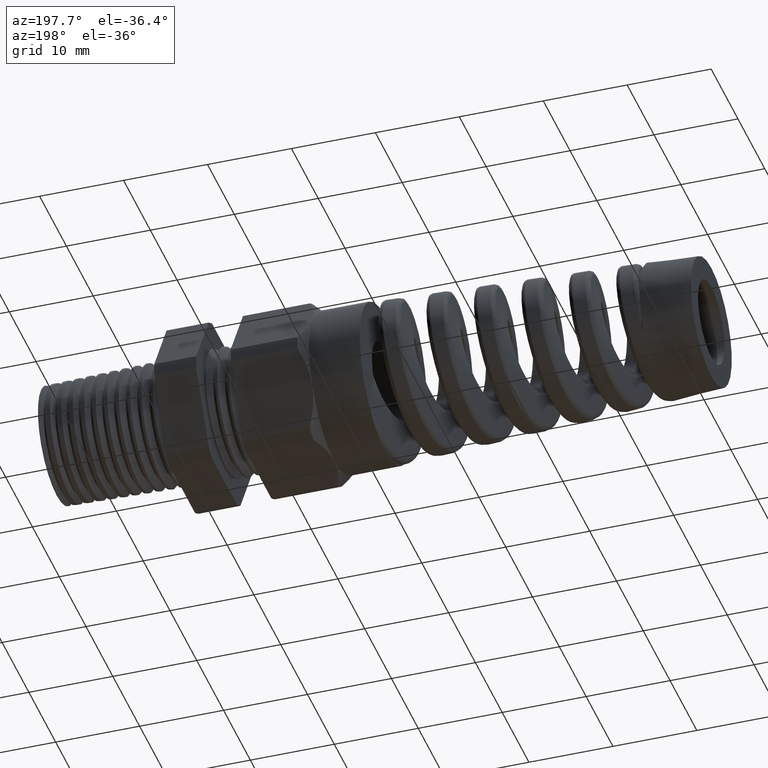
[diagram: clean part render]
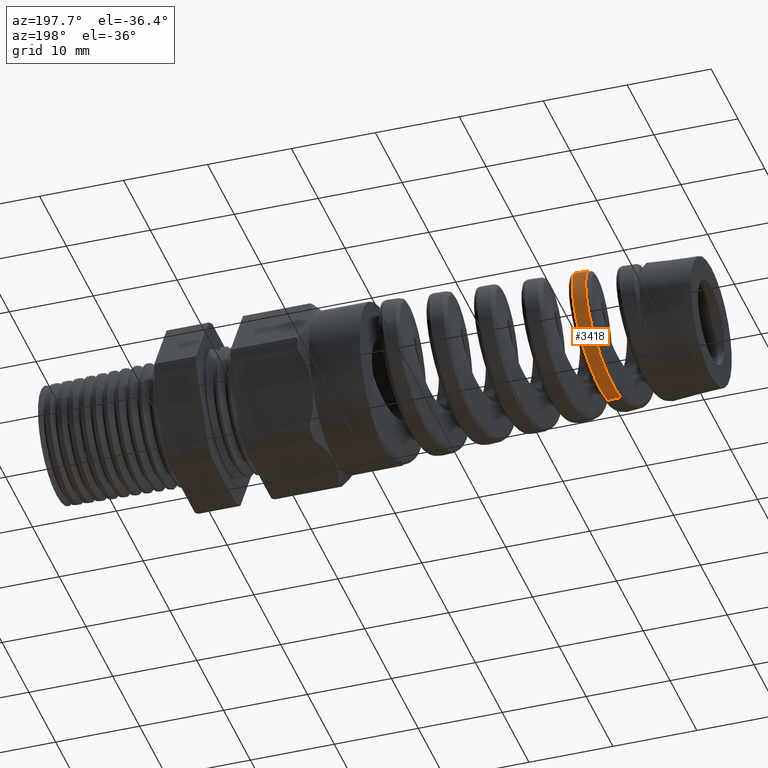
[diagram: same view with one face highlighted and labeled with its STEP entity id]
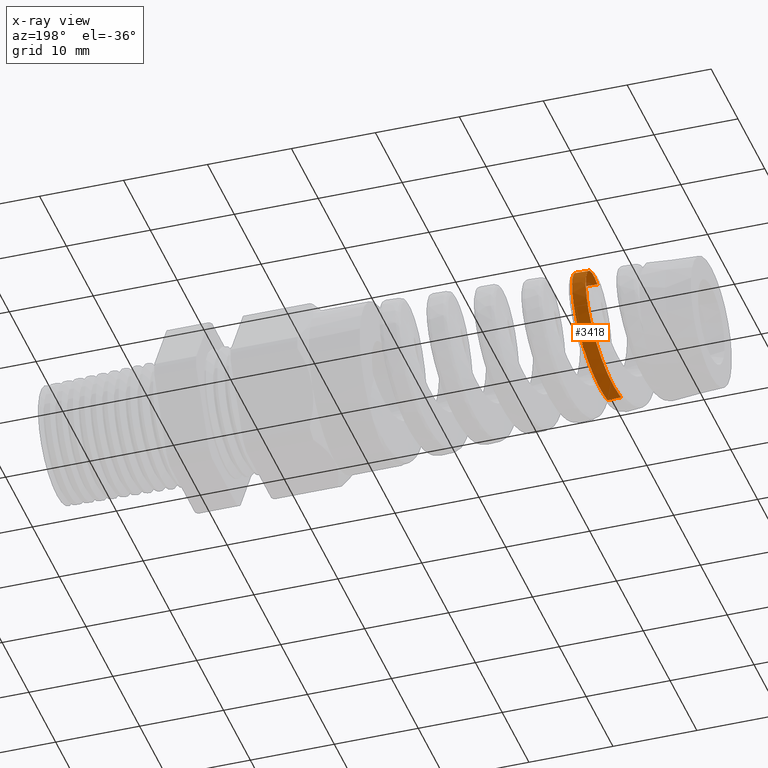
[diagram: x-ray of the same camera — body ghosted, the highlighted face saturated]
A machine part, auxiliary view. The second image highlights one B-rep face of the part: STEP entity #3418.
The next image is the same camera in x-ray: the body ghosted, the highlighted face saturated — about 1% of this face is hidden behind the body in this view.
In plain terms, the highlighted conical surface has half-angle 2.5 deg.
Its self-contained STEP definition (entity closure, byte-faithful):
#1494 = CARTESIAN_POINT ( 'NONE',  ( -2.209177487000779200, 0.1456362050329624300, 0.2969853871106482000 ) ) ;
#1495 = CARTESIAN_POINT ( 'NONE',  ( -2.205738799700770700, 0.1157113965931070700, 0.3094669749732346100 ) ) ;
#1496 = CARTESIAN_POINT ( 'NONE',  ( -2.204589334011666200, 0.1054975364402266800, 0.3131467736707749200 ) ) ;
#1497 = CARTESIAN_POINT ( 'NONE',  ( -2.202315930669323400, 0.08495742881057295700, 0.3194345641802153700 ) ) ;
#1498 = CARTESIAN_POINT ( 'NONE',  ( -2.200055135154602900, 0.06420458544207984000, 0.3246942573354517100 ) ) ;
#1499 = CARTESIAN_POINT ( 'NONE',  ( -2.197796051478310400, 0.04303442200611437600, 0.3279250048190918700 ) ) ;
#1500 = CARTESIAN_POINT ( 'NONE',  ( -2.195526008496445000, 0.02165381405193102900, 0.3301263665650415200 ) ) ;
#1501 = CARTESIAN_POINT ( 'NONE',  ( -2.194379242988937900, 0.01079892275251614000, 0.3307112457842698600 ) ) ;
#1502 = CARTESIAN_POINT ( 'NONE',  ( -2.193238227115036600, 3.170206203792401100E-013, 0.3307610636132082300 ) ) ;
#1504 = B_SPLINE_CURVE_WITH_KNOTS ( 'NONE', 3,
 ( #1502, #1501, #1500, #1499, #1498, #1497, #1496, #1495, #1494, #10245, #10241, #10224, #10721, #10720, #10719, #10718, #10717, #10716, #10715, #1557, #1556, #1555, #1554, #1553, #1552, #1551, #1550, #1549, #1548, #1547, #1546, #1545, #1544, #1543, #1542, #1541, #1540, #1539, #1538, #1537, #1536, #1535, #1534, #1533, #1532, #1531, #1530, #1529, #1528 ),
 .UNSPECIFIED., .F., .F.,
 ( 4, 2, 1, 2, 2, 2, 2, 2, 2, 2, 2, 2, 2, 2, 2, 2, 2, 2, 2, 2, 2, 2, 2, 2, 4 ),
 ( 0.2398424016245850100, 0.2406680876524174800, 0.2414937736802499600, 0.2423194597080824400, 0.2431451457359148900, 0.2447965177915798500, 0.2456222038194123300, 0.2464478898472448100, 0.2480992619029097300, 0.2489249479307422100, 0.2497506339585746900, 0.2514020060142396200, 0.2522276920420721300, 0.2530533780699045800, 0.2538790640977370800, 0.2547047501255695300, 0.2563561221812344900, 0.2580074942368994500, 0.2596588662925644100, 0.2604845523203968600, 0.2613102383482293600, 0.2629616104038942600, 0.2646129824595592200, 0.2654386684873917300, 0.2662643545152241800 ),
 .UNSPECIFIED. ) ;
#1511 = DIRECTION ( 'NONE',  ( 0.9990482215818576900, 0.0000000000000000000, -0.04361938736533628500 ) ) ;
#1512 = VECTOR ( 'NONE', #1511, 39.37007874015748100 ) ;
#1513 = CARTESIAN_POINT ( 'NONE',  ( -1.179999999999999900, 0.0000000000000000000, -0.3750000000000001100 ) ) ;
#1514 = LINE ( 'NONE', #1513, #1512 ) ;
#1528 = CARTESIAN_POINT ( 'NONE',  ( -2.303072361105305900, 5.141726150115494600E-013, -0.3259656017596531700 ) ) ;
#1529 = CARTESIAN_POINT ( 'NONE',  ( -2.301920201144354500, 0.01075418184079731000, -0.3260159061499128300 ) ) ;
#1530 = CARTESIAN_POINT ( 'NONE',  ( -2.300755430577350300, 0.02162714311558475200, -0.3255274832616165100 ) ) ;
#1531 = CARTESIAN_POINT ( 'NONE',  ( -2.298442958795185600, 0.04310314199974558900, -0.3234870128552830800 ) ) ;
#1532 = CARTESIAN_POINT ( 'NONE',  ( -2.297293729154626300, 0.05372065727903302400, -0.3219420385739279500 ) ) ;
#1533 = CARTESIAN_POINT ( 'NONE',  ( -2.293850496285076500, 0.08521890723315839200, -0.3157717939090702300 ) ) ;
#1534 = CARTESIAN_POINT ( 'NONE',  ( -2.291560605814346300, 0.1057487751343264700, -0.3096262052033625400 ) ) ;
#1535 = CARTESIAN_POINT ( 'NONE',  ( -2.286920470429096900, 0.1458272543633552200, -0.2931175932373655300 ) ) ;
#1536 = CARTESIAN_POINT ( 'NONE',  ( -2.284636197019675600, 0.1647800606196331300, -0.2829913660267374100 ) ) ;
#1537 = CARTESIAN_POINT ( 'NONE',  ( -2.281208427051308900, 0.1914786638383038900, -0.2651926435877093900 ) ) ;
#1538 = CARTESIAN_POINT ( 'NONE',  ( -2.280064622056161600, 0.2000971442091688800, -0.2588176991051756000 ) ) ;
#1539 = CARTESIAN_POINT ( 'NONE',  ( -2.277762599407943800, 0.2167594389224668500, -0.2451663736611863500 ) ) ;
#1540 = CARTESIAN_POINT ( 'NONE',  ( -2.276599554924935800, 0.2248320977805508500, -0.2378548441323176400 ) ) ;
#1541 = CARTESIAN_POINT ( 'NONE',  ( -2.273144141138296000, 0.2476743732625567300, -0.2150079963283508000 ) ) ;
#1542 = CARTESIAN_POINT ( 'NONE',  ( -2.270864710765881300, 0.2612358542246771000, -0.1984645542235977400 ) ) ;
#1543 = CARTESIAN_POINT ( 'NONE',  ( -2.266282573180328900, 0.2850642720406871800, -0.1627935500892188900 ) ) ;
#1544 = CARTESIAN_POINT ( 'NONE',  ( -2.263963809780321400, 0.2953590947746588300, -0.1434990103225291200 ) ) ;
#1545 = CARTESIAN_POINT ( 'NONE',  ( -2.259397979151342600, 0.3117183555947539700, -0.1038812284510735500 ) ) ;
#1546 = CARTESIAN_POINT ( 'NONE',  ( -2.257129578572953500, 0.3179226141503118700, -0.08340124169393846300 ) ) ;
#1547 = CARTESIAN_POINT ( 'NONE',  ( -2.253679547608537200, 0.3242088439066907500, -0.05166309062753419300 ) ) ;
#1548 = CARTESIAN_POINT ( 'NONE',  ( -2.252519727480928800, 0.3257925099286366200, -0.04089380219012450600 ) ) ;
#1549 = CARTESIAN_POINT ( 'NONE',  ( -2.250224769990559500, 0.3278708275233405100, -0.01948227174093790400 ) ) ;
#1550 = CARTESIAN_POINT ( 'NONE',  ( -2.249083333724185300, 0.3283794976952908500, -0.008782339484950753300 ) ) ;
#1551 = CARTESIAN_POINT ( 'NONE',  ( -2.246803970284199100, 0.3283545224690063700, 0.01260516921483891700 ) ) ;
#1552 = CARTESIAN_POINT ( 'NONE',  ( -2.245666558320045700, 0.3278208302279839700, 0.02329280022594375200 ) ) ;
#1553 = CARTESIAN_POINT ( 'NONE',  ( -2.243383867040451100, 0.3257000520063279000, 0.04465435357600222600 ) ) ;
#1554 = CARTESIAN_POINT ( 'NONE',  ( -2.242233951538998000, 0.3241039657371036500, 0.05537154305154983600 ) ) ;
#1555 = CARTESIAN_POINT ( 'NONE',  ( -2.238785955352539800, 0.3177354940091178800, 0.08719912084816966400 ) ) ;
#1556 = CARTESIAN_POINT ( 'NONE',  ( -2.236522261644973600, 0.3114779880375360700, 0.1076844159187185800 ) ) ;
#1557 = CARTESIAN_POINT ( 'NONE',  ( -2.233108970753142900, 0.2991756317165768500, 0.1373419936421445800 ) ) ;
#3359 = VERTEX_POINT ( 'NONE', #5852 ) ;
#3380 = VERTEX_POINT ( 'NONE', #5850 ) ;
#3416 = EDGE_LOOP ( 'NONE', ( #3422, #6407, #6146, #10093 ) ) ;
#3418 = ADVANCED_FACE ( 'NONE', ( #5923 ), #5918, .T. ) ;
#3422 = ORIENTED_EDGE ( 'NONE', *, *, #3423, .T. ) ;
#3423 = EDGE_CURVE ( 'NONE', #3359, #3380, #5907, .T. ) ;
#5850 = CARTESIAN_POINT ( 'NONE',  ( -2.255803844781471200, 3.621756841502075700E-016, 0.3280293897522382200 ) ) ;
#5852 = CARTESIAN_POINT ( 'NONE',  ( -2.365972676852627000, -5.751916567314480400E-015, -0.3232193146648820200 ) ) ;
#5893 = CARTESIAN_POINT ( 'NONE',  ( -2.335952384154522200, 0.2452056214577850700, -0.2128558421280715700 ) ) ;
#5894 = CARTESIAN_POINT ( 'NONE',  ( -2.337116253787379500, 0.2379628806085676000, -0.2208507404898432900 ) ) ;
#5895 = CARTESIAN_POINT ( 'NONE',  ( -2.340588829876800100, 0.2152417601658628000, -0.2435525900313549300 ) ) ;
#5896 = CARTESIAN_POINT ( 'NONE',  ( -2.342877696134207300, 0.1988138107476767900, -0.2569983534002076600 ) ) ;
#5897 = CARTESIAN_POINT ( 'NONE',  ( -2.347481279838886900, 0.1634595574301346000, -0.2805811131025434100 ) ) ;
#5898 = CARTESIAN_POINT ( 'NONE',  ( -2.349815459327329000, 0.1443190696970299600, -0.2907786594227971800 ) ) ;
#5899 = CARTESIAN_POINT ( 'NONE',  ( -2.354419099894529600, 0.1049544427866682500, -0.3069765637701985000 ) ) ;
#5900 = CARTESIAN_POINT ( 'NONE',  ( -2.356703206343147000, 0.08463738793928682300, -0.3130892954446149500 ) ) ;
#5901 = CARTESIAN_POINT ( 'NONE',  ( -2.360174635947206700, 0.05320706543500560600, -0.3192450671240927300 ) ) ;
#5902 = CARTESIAN_POINT ( 'NONE',  ( -2.361345075774900600, 0.04251657945143615100, -0.3207926893897890500 ) ) ;
#5903 = CARTESIAN_POINT ( 'NONE',  ( -2.363665833232092300, 0.02123473501328850000, -0.3227989515284803700 ) ) ;
#5904 = CARTESIAN_POINT ( 'NONE',  ( -2.364819975423546200, 0.01060945820310109700, -0.3232696426961677000 ) ) ;
#5905 = CARTESIAN_POINT ( 'NONE',  ( -2.365972676852627000, -5.751916567314480400E-015, -0.3232193146648820200 ) ) ;
#5907 = B_SPLINE_CURVE_WITH_KNOTS ( 'NONE', 3,
 ( #5905, #5904, #5903, #5902, #5901, #5900, #5899, #5898, #5897, #5896, #5895, #5894, #5893, #5970, #5969, #5968, #5967, #5965, #5964, #5963, #5962, #5961, #5960, #5958, #5957, #5956, #5955, #5954, #5953, #5951, #5950, #5949, #5948, #5947, #5946, #5945, #5944, #5943, #5942, #5941, #5940, #5939, #5938, #5937, #5936 ),
 .UNSPECIFIED., .F., .F.,
 ( 4, 2, 2, 2, 2, 2, 2, 1, 2, 2, 2, 2, 2, 2, 2, 2, 2, 2, 2, 2, 2, 2, 4 ),
 ( 0.04406479074309756900, 0.04488904279929904800, 0.04571329485550051900, 0.04736179896790346900, 0.04901030308030641900, 0.05065880719270936900, 0.05148305924891084100, 0.05230731130511232000, 0.05313156336131379100, 0.05395581541751526300, 0.05560431952991822000, 0.05642857158611969100, 0.05725282364232117000, 0.05890132775472412000, 0.05972557981092560500, 0.06054983186712707700, 0.06219833597953002700, 0.06384684009193297700, 0.06467109214813446200, 0.06549534420433593400, 0.06714384831673887700, 0.06879235242914183400, 0.07044085654154477700 ),
 .UNSPECIFIED. ) ;
#5914 = DIRECTION ( 'NONE',  ( 0.0000000000000000000, 0.0000000000000000000, -1.000000000000000000 ) ) ;
#5915 = DIRECTION ( 'NONE',  ( 1.000000000000000000, 0.0000000000000000000, 0.0000000000000000000 ) ) ;
#5916 = CARTESIAN_POINT ( 'NONE',  ( -1.179999999999999900, 0.0000000000000000000, 0.0000000000000000000 ) ) ;
#5917 = AXIS2_PLACEMENT_3D ( 'NONE', #5916, #5915, #5914 ) ;
#5918 = CONICAL_SURFACE ( 'NONE', #5917, 0.3750000000000001100, 0.04363323129985852100 ) ;
#5923 = FACE_OUTER_BOUND ( 'NONE', #3416, .T. ) ;
#5936 = CARTESIAN_POINT ( 'NONE',  ( -2.255803844781471200, 3.621756841502075700E-016, 0.3280293897522382200 ) ) ;
#5937 = CARTESIAN_POINT ( 'NONE',  ( -2.258089942787760800, 0.02135566786368742500, 0.3279295765577021600 ) ) ;
#5938 = CARTESIAN_POINT ( 'NONE',  ( -2.260352664922128600, 0.04246249618373695200, 0.3257647328470279500 ) ) ;
#5939 = CARTESIAN_POINT ( 'NONE',  ( -2.264903583427110500, 0.08417591520400206900, 0.3173482334676087100 ) ) ;
#5940 = CARTESIAN_POINT ( 'NONE',  ( -2.267210517927480400, 0.1049165753353977200, 0.3110003196632100700 ) ) ;
#5941 = CARTESIAN_POINT ( 'NONE',  ( -2.271758965751020700, 0.1441612046972909600, 0.2946458628857338000 ) ) ;
#5942 = CARTESIAN_POINT ( 'NONE',  ( -2.274021889950280000, 0.1628719835672588800, 0.2846266043771748000 ) ) ;
#5943 = CARTESIAN_POINT ( 'NONE',  ( -2.277465052419391300, 0.1895376978509060500, 0.2667837098032161400 ) ) ;
#5944 = CARTESIAN_POINT ( 'NONE',  ( -2.278623396453129500, 0.1982058510658698300, 0.2603438943160778000 ) ) ;
#5945 = CARTESIAN_POINT ( 'NONE',  ( -2.280915653185582300, 0.2146932926019506400, 0.2467910908577131700 ) ) ;
#5946 = CARTESIAN_POINT ( 'NONE',  ( -2.282055547586491900, 0.2225616941060445700, 0.2396485859442858700 ) ) ;
#5947 = CARTESIAN_POINT ( 'NONE',  ( -2.285469387238547000, 0.2450596571148692900, 0.2171429057429653800 ) ) ;
#5948 = CARTESIAN_POINT ( 'NONE',  ( -2.287748448169056200, 0.2586386312343897900, 0.2006423770359895300 ) ) ;
#5949 = CARTESIAN_POINT ( 'NONE',  ( -2.292354947980539400, 0.2825133895162589800, 0.1649428446600479400 ) ) ;
#5950 = CARTESIAN_POINT ( 'NONE',  ( -2.294625758150697700, 0.2925243415925072900, 0.1461994443306217600 ) ) ;
#5951 = CARTESIAN_POINT ( 'NONE',  ( -2.298051391165123500, 0.3047429482914530400, 0.1167944019164438400 ) ) ;
#5953 = CARTESIAN_POINT ( 'NONE',  ( -2.299196329758769000, 0.3083461906877795200, 0.1067761751352823600 ) ) ;
#5954 = CARTESIAN_POINT ( 'NONE',  ( -2.301502272706580100, 0.3145883430510200100, 0.08629622913911541600 ) ) ;
#5955 = CARTESIAN_POINT ( 'NONE',  ( -2.302663257466435200, 0.3172196135912345700, 0.07583290748691907900 ) ) ;
#5956 = CARTESIAN_POINT ( 'NONE',  ( -2.306106454691494000, 0.3234886540668491800, 0.04446456756481770300 ) ) ;
#5957 = CARTESIAN_POINT ( 'NONE',  ( -2.308375258999914200, 0.3255933447568809000, 0.02335451713907580100 ) ) ;
#5958 = CARTESIAN_POINT ( 'NONE',  ( -2.311811749990420500, 0.3256446941161434400, -0.008598744592162576100 ) ) ;
#5960 = CARTESIAN_POINT ( 'NONE',  ( -2.312968366461647800, 0.3251347704489528900, -0.01935039517648173800 ) ) ;
#5961 = CARTESIAN_POINT ( 'NONE',  ( -2.315277370688448400, 0.3230562585051619500, -0.04069501851350555000 ) ) ;
#5962 = CARTESIAN_POINT ( 'NONE',  ( -2.316424389057581700, 0.3214984670218312100, -0.05123833691944438400 ) ) ;
#5963 = CARTESIAN_POINT ( 'NONE',  ( -2.319860204853328800, 0.3153136028078230000, -0.08249043471175562800 ) ) ;
#5964 = CARTESIAN_POINT ( 'NONE',  ( -2.322144197817575400, 0.3091893482759762700, -0.1028248904680355700 ) ) ;
#5965 = CARTESIAN_POINT ( 'NONE',  ( -2.325616949948098100, 0.2969152961662653300, -0.1325482652580671200 ) ) ;
#5967 = CARTESIAN_POINT ( 'NONE',  ( -2.326777355370543100, 0.2923153018871479400, -0.1422854582223570300 ) ) ;
#5968 = CARTESIAN_POINT ( 'NONE',  ( -2.329075266513352700, 0.2822793723526624300, -0.1610793389671551500 ) ) ;
#5969 = CARTESIAN_POINT ( 'NONE',  ( -2.331362040943707000, 0.2713670908531303800, -0.1792950466650045600 ) ) ;
#5970 = CARTESIAN_POINT ( 'NONE',  ( -2.333650699847476000, 0.2587253216686462600, -0.1963666234377776400 ) ) ;
#6008 = VERTEX_POINT ( 'NONE', #8848 ) ;
#6146 = ORIENTED_EDGE ( 'NONE', *, *, #10713, .T. ) ;
#6407 = ORIENTED_EDGE ( 'NONE', *, *, #6456, .T. ) ;
#6456 = EDGE_CURVE ( 'NONE', #3380, #6008, #9910, .T. ) ;
#8221 = VERTEX_POINT ( 'NONE', #10116 ) ;
#8848 = CARTESIAN_POINT ( 'NONE',  ( -2.193238227115036600, 3.170206203792401100E-013, 0.3307610636132082300 ) ) ;
#9907 = DIRECTION ( 'NONE',  ( 0.9990482215818576900, 5.341834311772757900E-018, 0.04361938736533628500 ) ) ;
#9908 = VECTOR ( 'NONE', #9907, 39.37007874015748100 ) ;
#9909 = CARTESIAN_POINT ( 'NONE',  ( -1.179999999999999900, 4.592425496802576100E-017, 0.3750000000000001100 ) ) ;
#9910 = LINE ( 'NONE', #9909, #9908 ) ;
#10093 = ORIENTED_EDGE ( 'NONE', *, *, #10239, .F. ) ;
#10116 = CARTESIAN_POINT ( 'NONE',  ( -2.303072361105305900, 5.141726150115494600E-013, -0.3259656017596531700 ) ) ;
#10224 = CARTESIAN_POINT ( 'NONE',  ( -2.215979204727292400, 0.1998055819480005200, 0.2625672725331088000 ) ) ;
#10239 = EDGE_CURVE ( 'NONE', #3359, #8221, #1514, .T. ) ;
#10241 = CARTESIAN_POINT ( 'NONE',  ( -2.214842468377733900, 0.1911789140338680500, 0.2689702880629877800 ) ) ;
#10245 = CARTESIAN_POINT ( 'NONE',  ( -2.211438613628935900, 0.1644932665321211200, 0.2868418447076726600 ) ) ;
#10713 = EDGE_CURVE ( 'NONE', #6008, #8221, #1504, .T. ) ;
#10715 = CARTESIAN_POINT ( 'NONE',  ( -2.231968410012539200, 0.2945853402288587900, 0.1470481985433900200 ) ) ;
#10716 = CARTESIAN_POINT ( 'NONE',  ( -2.229671198479128900, 0.2844003532244602200, 0.1660908032820727400 ) ) ;
#10717 = CARTESIAN_POINT ( 'NONE',  ( -2.228515890940487000, 0.2788053534579229000, 0.1754121015037213300 ) ) ;
#10718 = CARTESIAN_POINT ( 'NONE',  ( -2.225088062947900200, 0.2608796031929042600, 0.2022095457099367400 ) ) ;
#10719 = CARTESIAN_POINT ( 'NONE',  ( -2.222830921205284100, 0.2473113050828513500, 0.2187427978271953300 ) ) ;
#10720 = CARTESIAN_POINT ( 'NONE',  ( -2.219417144533781800, 0.2245432369051907600, 0.2415445504461373200 ) ) ;
#10721 = CARTESIAN_POINT ( 'NONE',  ( -2.218268611971673500, 0.2165051224126398600, 0.2488442473148737600 ) ) ;